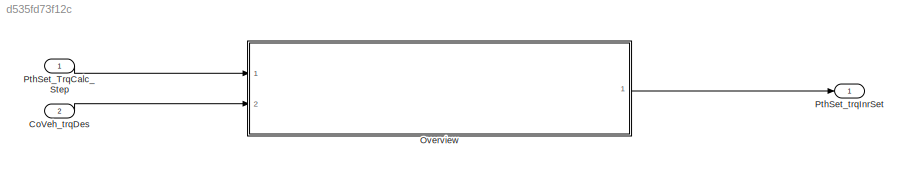
MODEL slx_d535fd73f12c
KIND model
CONFIG AbsTol = auto
CONFIG EnableMultiTasking = off
CONFIG FixedStep = 0.001
CONFIG MaxStep = auto
CONFIG MinStep = auto
CONFIG RelTol = 1e-3
CONFIG SampleTimeConstraint = Unconstrained
CONFIG Solver = FixedStepDiscrete
CONFIG SolverName = FixedStepDiscrete
CONFIG StartTime = 0.0
CONFIG StopTime = Inf
BLOCK [Inport] CoVeh_trqDes
  Description = Setpoint torque order to the drive train (gearbox output torque)
  IconDisplay = Port number
  OutDataTypeStr = Torq
  OutMax = 3000
  OutMin = -3000
  Port = 2
  PortDimensions = [1 1]
  Unit = Nm
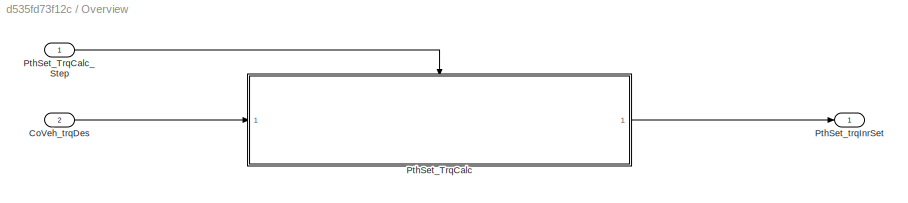
BLOCK [SubSystem] Overview
  Ports = [2, 1]
  RequestExecContextInheritance = off
BLOCK [Inport] Overview/CoVeh_trqDes
  IconDisplay = Port number
  Port = 2
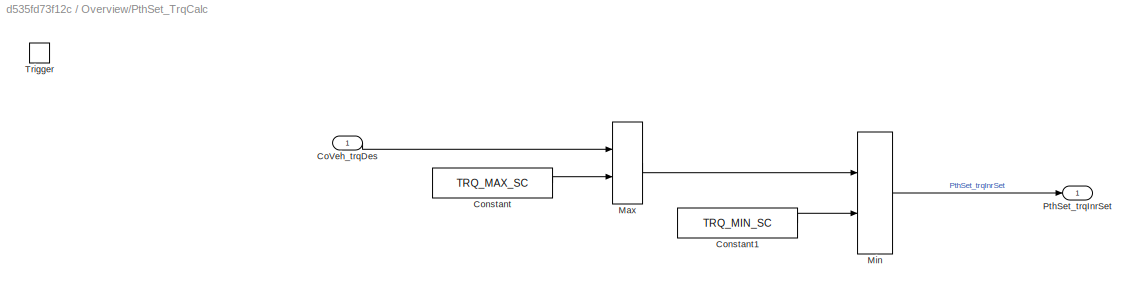
BLOCK [SubSystem] Overview/PthSet_TrqCalc
  Ports = [1, 1, 0, 1]
  RequestExecContextInheritance = off
BLOCK [Inport] Overview/PthSet_TrqCalc/CoVeh_trqDes
  IconDisplay = Port number
  Tag = Nm
BLOCK [Constant] Overview/PthSet_TrqCalc/Constant
  Value = TRQ_MAX_SC
BLOCK [Constant] Overview/PthSet_TrqCalc/Constant1
  Value = TRQ_MIN_SC
BLOCK [MinMax] Overview/PthSet_TrqCalc/Max
  InputSameDT = off
  Inputs = 2
  Ports = [2, 1]
  SaturateOnIntegerOverflow = off
BLOCK [MinMax] Overview/PthSet_TrqCalc/Min
  Function = max
  InputSameDT = off
  Inputs = 2
  Ports = [2, 1]
  SaturateOnIntegerOverflow = off
BLOCK [Outport] Overview/PthSet_TrqCalc/PthSet_trqInrSet
  IconDisplay = Port number
  Tag = Nm
BLOCK [TriggerPort] Overview/PthSet_TrqCalc/Trigger
  PortDimensions = 1
  Ports = []
  StatesWhenEnabling = held
  TriggerType = function-call
  VariantControl = Variant
BLOCK [Inport] Overview/PthSet_TrqCalc_Step
  IconDisplay = Port number
BLOCK [Outport] Overview/PthSet_trqInrSet
  IconDisplay = Port number
BLOCK [Inport] PthSet_TrqCalc_Step
  IconDisplay = Port number
  OutputFunctionCall = on
BLOCK [Outport] PthSet_trqInrSet
  Description = Inner torque set value after monitoring limitation
  IconDisplay = Port number
  OutDataTypeStr = Torq
  OutMax = 3276.7
  OutMin = -3000
  PortDimensions = [1 1]
  Unit = Nm
LINE CoVeh_trqDes:1 -> Overview:2
LINE Overview/CoVeh_trqDes:1 -> Overview/PthSet_TrqCalc:1
LINE Overview/PthSet_TrqCalc/CoVeh_trqDes:1 -> Overview/PthSet_TrqCalc/Max:1
LINE Overview/PthSet_TrqCalc/Constant1:1 -> Overview/PthSet_TrqCalc/Min:2
LINE Overview/PthSet_TrqCalc/Constant:1 -> Overview/PthSet_TrqCalc/Max:2
LINE Overview/PthSet_TrqCalc/Max:1 -> Overview/PthSet_TrqCalc/Min:1
LINE Overview/PthSet_TrqCalc/Min:1 -> Overview/PthSet_TrqCalc/PthSet_trqInrSet:1
LINE Overview/PthSet_TrqCalc:1 -> Overview/PthSet_trqInrSet:1
LINE Overview/PthSet_TrqCalc_Step:1 -> Overview/PthSet_TrqCalc:trigger
LINE Overview:1 -> PthSet_trqInrSet:1
LINE PthSet_TrqCalc_Step:1 -> Overview:1
